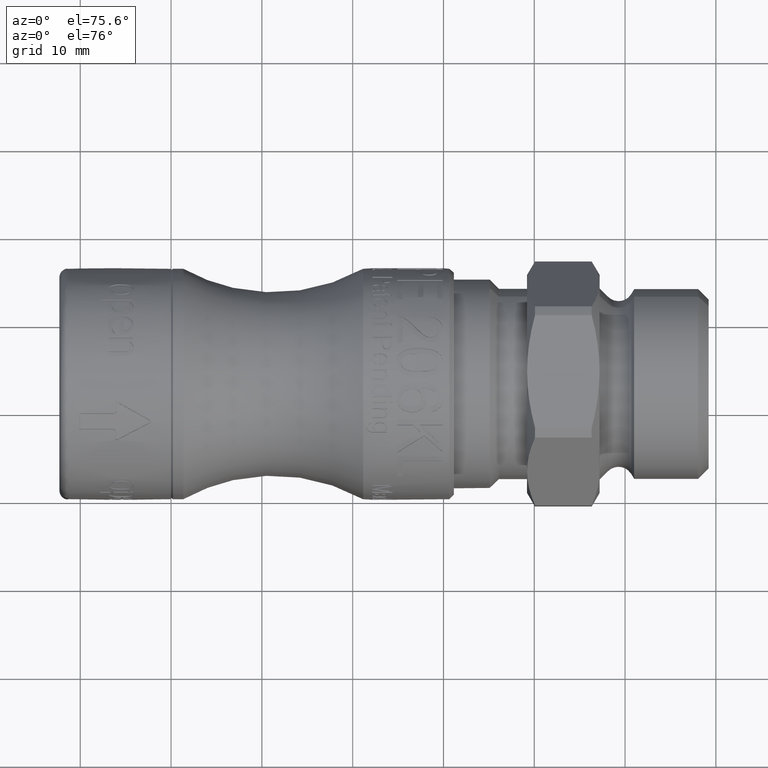
[diagram: clean part render]
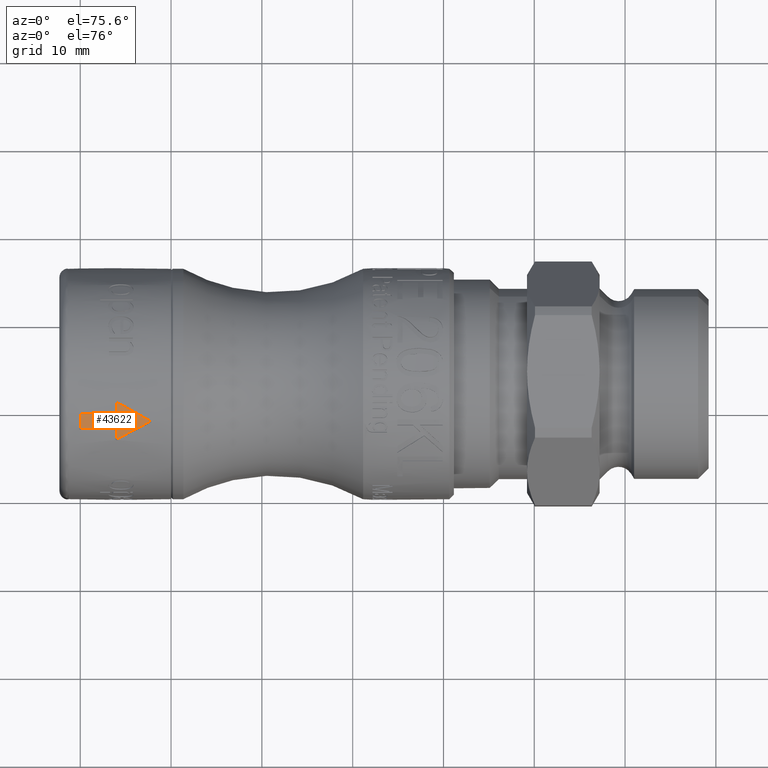
[diagram: same view with one face highlighted and labeled with its STEP entity id]
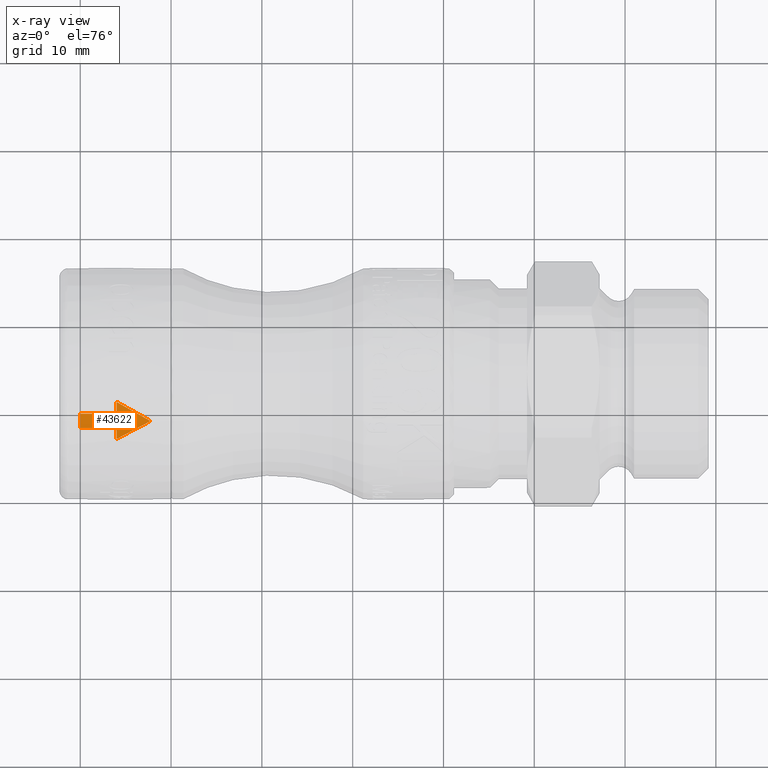
[diagram: x-ray of the same camera — body ghosted, the highlighted face saturated]
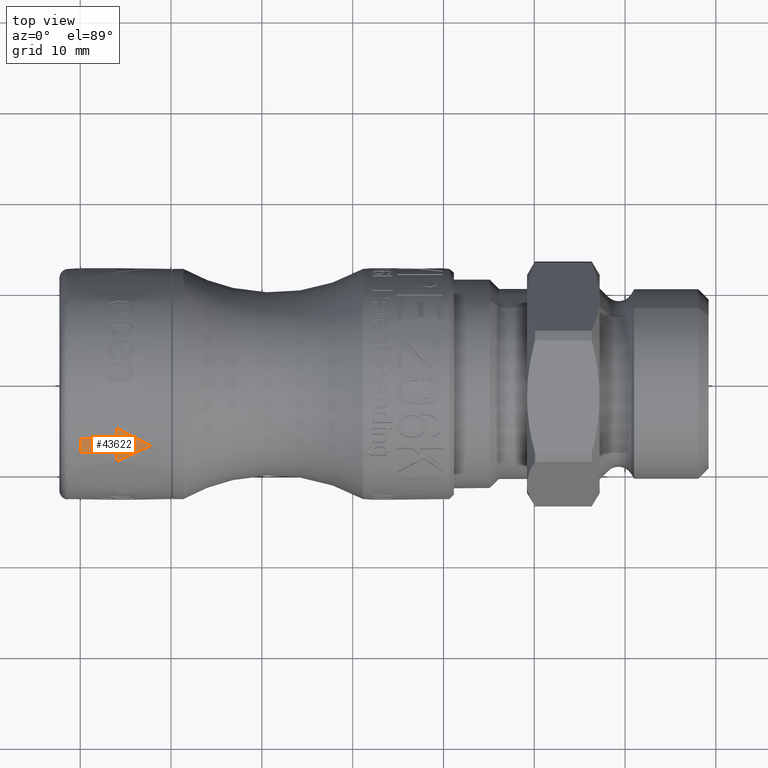
[diagram: same view with one face highlighted and labeled with its STEP entity id]
A machine part, auxiliary view. The second image highlights one B-rep face of the part: STEP entity #43622.
The next image is the same camera in x-ray: the body ghosted, the highlighted face saturated — about 0% of this face is hidden behind the body in this view.
A second angle (top view) of the same face is appended — the face is thin or edge-on in the first view.
In plain terms, the highlighted cylindrical surface (partial cylindrical patch) has radius 12.75 mm, axis along (1, 0, 0).
Its self-contained STEP definition (entity closure, byte-faithful):
#14612=CARTESIAN_POINT('',(3.999655291612896,-7.932189554639195,9.982127472100968));
#14613=VERTEX_POINT('',#14612);
#14620=CARTESIAN_POINT('',(3.650000000011668,-7.655491952643687,10.195878724416445));
#14621=VERTEX_POINT('',#14620);
#14622=CARTESIAN_POINT('',(3.650000000011668,-7.655491952643687,10.195878724416445));
#14623=CARTESIAN_POINT('',(3.657628295117902,-7.655491952643889,10.195878724416293));
#14624=CARTESIAN_POINT('',(3.672884889651633,-7.655891327568524,10.195578871784932));
#14625=CARTESIAN_POINT('',(3.691873951672521,-7.657386866867019,10.194455755884274));
#14626=CARTESIAN_POINT('',(3.714514196560137,-7.660071834969344,10.192438563155701));
#14627=CARTESIAN_POINT('',(3.7369102840588,-7.663938197196707,10.18953235582191));
#14628=CARTESIAN_POINT('',(3.769777336115218,-7.671903935456609,10.183537144048412));
#14629=CARTESIAN_POINT('',(3.798028101372618,-7.681248161886426,10.176492926869811));
#14630=CARTESIAN_POINT('',(3.831684099855312,-7.695599310839688,10.165645556606158));
#14631=CARTESIAN_POINT('',(3.857109128747647,-7.709138802189982,10.155384436257073));
#14632=CARTESIAN_POINT('',(3.886608853042644,-7.728408478956289,10.140728588429116));
#14633=CARTESIAN_POINT('',(3.908231064468925,-7.745596053958116,10.127609592421305));
#14634=CARTESIAN_POINT('',(3.932440859006556,-7.769008056989803,10.109662106041601));
#14635=CARTESIAN_POINT('',(3.949429329050325,-7.789153820070974,10.094151407838872));
#14636=CARTESIAN_POINT('',(3.967418794999654,-7.81577243555815,10.073555867132695));
#14637=CARTESIAN_POINT('',(3.979120738752467,-7.83807472104299,10.056214703193213));
#14638=CARTESIAN_POINT('',(3.989090470696374,-7.863968951095376,10.035972844604357));
#14639=CARTESIAN_POINT('',(3.993927287396956,-7.881583774804104,10.022141590391392));
#14640=CARTESIAN_POINT('',(3.997285578689826,-7.899365648070679,10.008127819358158));
#14641=CARTESIAN_POINT('',(3.999155880018623,-7.9142641728776,9.996354174170905));
#14642=CARTESIAN_POINT('',(3.999655291611817,-7.926217271176825,9.986873282513626));
#14643=CARTESIAN_POINT('',(3.999655291612896,-7.932189554639195,9.982127472100968));
#14644=B_SPLINE_CURVE_WITH_KNOTS('',3,(#14622,#14623,#14624,#14625,#14626,#14627,#14628,#14629,#14630,#14631,#14632,#14633,#14634,#14635,#14636,#14637,#14638,#14639,#14640,#14641,#14642,#14643),.UNSPECIFIED.,.F.,.U.,(4,1,1,1,1,1,1,1,1,1,1,1,1,1,1,1,1,1,1,4),(1.570796326969637,1.636246173912144,1.70169602085465,1.734420944325904,1.832595714739663,1.89804556168217,2.028945255567182,2.094395102509689,2.225294796394702,2.290744643337209,2.421644337222221,2.487094184164728,2.617993878049741,2.683443724992247,2.81434341887726,2.879793265819766,2.977968036233527,3.01069295970478,3.076142806647287,3.141592653589793),.UNSPECIFIED.);
#14645=EDGE_CURVE('',#14621,#14613,#14644,.T.);
#14670=CARTESIAN_POINT('',(3.999655291612903,-8.600583307388494,9.412357131594098));
#14671=VERTEX_POINT('',#14670);
#14678=CARTESIAN_POINT('',(3.999655291612894,1.211596E-049,1.072766E-050));
#14679=DIRECTION('',(1.0,1.057138E-052,-8.059453E-052));
#14680=DIRECTION('',(-8.128488E-052,0.130053398027148,-0.991506991231828));
#14681=AXIS2_PLACEMENT_3D('',#14678,#14679,#14680);
#14682=CIRCLE('',#14681,12.75);
#14683=EDGE_CURVE('',#14613,#14671,#14682,.T.);
#14865=CARTESIAN_POINT('',(4.075172354164559,-8.632719378807998,9.38289167190759));
#14866=VERTEX_POINT('',#14865);
#14873=CARTESIAN_POINT('',(3.999655291612903,-8.600583307388494,9.412357131594098));
#14874=CARTESIAN_POINT('',(3.99965529161216,-8.601664413093557,9.411369266434447));
#14875=CARTESIAN_POINT('',(3.999783157585651,-8.603826284593986,9.409393161684035));
#14876=CARTESIAN_POINT('',(4.000261503980494,-8.60650720813687,9.406940911731752));
#14877=CARTESIAN_POINT('',(4.000975929314105,-8.609156805057994,9.404516080174108));
#14878=CARTESIAN_POINT('',(4.001734715880319,-8.611245368713124,9.402603714365414));
#14879=CARTESIAN_POINT('',(4.002911841634002,-8.613802336579951,9.400261307161697));
#14880=CARTESIAN_POINT('',(4.004033763324316,-8.615799088656377,9.398431206159613));
#14881=CARTESIAN_POINT('',(4.005653444887802,-8.618219828288522,9.396211468936862));
#14882=CARTESIAN_POINT('',(4.00711930611065,-8.620090744892167,9.394495101107193));
#14883=CARTESIAN_POINT('',(4.009153829947625,-8.622334034246377,9.392436230593177));
#14884=CARTESIAN_POINT('',(4.010938549484376,-8.624047276541697,9.390863152865205));
#14885=CARTESIAN_POINT('',(4.013353104297162,-8.626074962589506,9.389000628635326));
#14886=CARTESIAN_POINT('',(4.015426145108463,-8.627601409775734,9.387597967853608));
#14887=CARTESIAN_POINT('',(4.018179417191928,-8.629379045607994,9.385963928126651));
#14888=CARTESIAN_POINT('',(4.020505308975377,-8.630692779995812,9.384755902536114));
#14889=CARTESIAN_POINT('',(4.02355018908061,-8.632190197328333,9.383378575917421));
#14890=CARTESIAN_POINT('',(4.026089135183003,-8.633268934118195,9.382386065934774));
#14891=CARTESIAN_POINT('',(4.029373524567198,-8.634460742558916,9.381289270080643));
#14892=CARTESIAN_POINT('',(4.032082082916818,-8.63528619790478,9.380529446702235));
#14893=CARTESIAN_POINT('',(4.035549784767019,-8.636152203600766,9.379732163727281));
#14894=CARTESIAN_POINT('',(4.038381611179601,-8.636710395570386,9.379218181901285));
#14895=CARTESIAN_POINT('',(4.041973292155613,-8.637235933156243,9.378734218948184));
#14896=CARTESIAN_POINT('',(4.044879933296444,-8.637517411255756,9.378474982024677));
#14897=CARTESIAN_POINT('',(4.048534138739544,-8.637693584356512,9.378312723794767));
#14898=CARTESIAN_POINT('',(4.05146586117629,-8.63769358436346,9.378312723788326));
#14899=CARTESIAN_POINT('',(4.055120066602513,-8.637517411241664,9.378474982037847));
#14900=CARTESIAN_POINT('',(4.05802670778894,-8.637235933202069,9.378734218905654));
#14901=CARTESIAN_POINT('',(4.061618388558709,-8.63671039536484,9.379218182092588));
#14902=CARTESIAN_POINT('',(4.064450215466986,-8.636152204007654,9.379732163348994));
#14903=CARTESIAN_POINT('',(4.067917915054585,-8.635286195527316,9.3805294489137));
#14904=CARTESIAN_POINT('',(4.071303619735905,-8.63425438465131,9.381479220411064));
#14905=CARTESIAN_POINT('',(4.073904087483697,-8.633258239438193,9.382395893765054));
#14906=CARTESIAN_POINT('',(4.075172354151698,-8.632719378791609,9.382891671922671));
#14907=B_SPLINE_CURVE_WITH_KNOTS('',3,(#14873,#14874,#14875,#14876,#14877,#14878,#14879,#14880,#14881,#14882,#14883,#14884,#14885,#14886,#14887,#14888,#14889,#14890,#14891,#14892,#14893,#14894,#14895,#14896,#14897,#14898,#14899,#14900,#14901,#14902,#14903,#14904,#14905,#14906),.UNSPECIFIED.,.F.,.U.,(4,1,1,1,1,1,1,1,1,1,1,1,1,1,1,1,1,1,1,1,1,1,1,1,1,1,1,1,1,1,1,4),(1.120457E-023,0.087266462580853,0.174532925161705,0.218166156452132,0.305432619032984,0.349065850323411,0.436332312904263,0.47996554419469,0.567232006775542,0.610865238065969,0.698131700646821,0.741764931937248,0.8290313945181,0.872664625808527,0.959931088389379,1.003564319679805,1.090830782260658,1.134464013551084,1.221730476131937,1.265363707422363,1.352630170003216,1.396263401293642,1.483529863874495,1.527163095164921,1.614429557745774,1.6580627890362,1.745329251617053,1.788962482907479,1.876228945488332,1.919862176778758,2.007128639359611,2.094395101940464),.UNSPECIFIED.);
#14908=EDGE_CURVE('',#14671,#14866,#14907,.T.);
#15000=CARTESIAN_POINT('',(7.675172354005589,-6.995467483935391,10.659546645200377));
#15001=VERTEX_POINT('',#15000);
#15008=CARTESIAN_POINT('',(4.075172354164562,-8.632719378807996,9.38289167190759));
#15009=CARTESIAN_POINT('',(4.175172354160682,-8.590231417770317,9.421982674707314));
#15010=CARTESIAN_POINT('',(4.375172354152915,-8.504724448928942,9.499587486311775));
#15011=CARTESIAN_POINT('',(4.625172354143211,-8.396532838874695,9.59513260664815));
#15012=CARTESIAN_POINT('',(4.8751723541335,-8.287375286538612,9.689568841300716));
#15013=CARTESIAN_POINT('',(5.075172354125733,-8.199282532586398,9.764225489888787));
#15014=CARTESIAN_POINT('',(5.325172354116047,-8.088223441102224,9.856417961660329));
#15015=CARTESIAN_POINT('',(5.525172354108284,-7.998627797402972,9.929264163388062));
#15016=CARTESIAN_POINT('',(5.775172354098578,-7.885713280051402,10.019174593399223));
#15017=CARTESIAN_POINT('',(5.975172354090816,-7.794651947565781,10.090180101648343));
#15018=CARTESIAN_POINT('',(6.225172354081118,-7.6799288877479,10.177771158268584));
#15019=CARTESIAN_POINT('',(6.425172354073362,-7.587439675929957,10.246906490576972));
#15020=CARTESIAN_POINT('',(6.725172354061725,-7.447658915164079,10.349188869179393));
#15021=CARTESIAN_POINT('',(7.125172354046196,-7.259440523205278,10.483027229622667));
#15022=CARTESIAN_POINT('',(7.475172354032621,-7.092005399645679,10.596192370126577));
#15023=CARTESIAN_POINT('',(7.675172354024859,-6.995467483963285,10.659546645182074));
#15024=B_SPLINE_CURVE_WITH_KNOTS('',3,(#15008,#15009,#15010,#15011,#15012,#15013,#15014,#15015,#15016,#15017,#15018,#15019,#15020,#15021,#15022,#15023),.UNSPECIFIED.,.F.,.U.,(4,1,1,1,1,1,1,1,1,1,1,1,1,4),(0.0,0.034641016149972,0.069282032299943,0.086602540374929,0.121243556524901,0.138564064599887,0.173205080749858,0.190525588824844,0.225166604974816,0.242487113049802,0.277128129199773,0.294448637274759,0.346410161499716,0.41569219379966),.UNSPECIFIED.);
#15025=EDGE_CURVE('',#14866,#15001,#15024,.T.);
#15207=CARTESIAN_POINT('',(7.675172354315905,-6.922401850087592,10.707140263670034));
#15208=VERTEX_POINT('',#15207);
#15215=CARTESIAN_POINT('',(7.675172354005591,-6.995467483935391,10.659546645200377));
#15216=CARTESIAN_POINT('',(7.676440620677671,-6.994855304836197,10.659948395774325));
#15217=CARTESIAN_POINT('',(7.678913222459035,-6.993538297578552,10.66081254863988));
#15218=CARTESIAN_POINT('',(7.681820580755305,-6.991672820164593,10.662036050829538));
#15219=CARTESIAN_POINT('',(7.68457385501968,-6.989653557811764,10.66335992235523));
#15220=CARTESIAN_POINT('',(7.686646895370481,-6.987919701732737,10.664496251905941));
#15221=CARTESIAN_POINT('',(7.689061450397933,-6.985616619348587,10.666004998655305));
#15222=CARTESIAN_POINT('',(7.690846169903454,-6.983670787386526,10.667279169370774));
#15223=CARTESIAN_POINT('',(7.692880693778237,-6.981123093733759,10.668946668019302));
#15224=CARTESIAN_POINT('',(7.694346555001967,-6.978998422596568,10.67033663925741));
#15225=CARTESIAN_POINT('',(7.695966236620545,-6.976249523297192,10.672134072514064));
#15226=CARTESIAN_POINT('',(7.697088158234648,-6.973982226611049,10.673615846538706));
#15227=CARTESIAN_POINT('',(7.698265284410432,-6.971078996373247,10.675512214224025));
#15228=CARTESIAN_POINT('',(7.699024070021723,-6.96870775412119,10.677060261782314));
#15229=CARTESIAN_POINT('',(7.699738499800862,-6.965699745774528,10.679022927861109));
#15230=CARTESIAN_POINT('',(7.700121166376817,-6.963265050181269,10.680610637012105));
#15231=CARTESIAN_POINT('',(7.700360675667764,-6.960203655125588,10.682605900874274));
#15232=CARTESIAN_POINT('',(7.700360675677135,-6.957747123259876,10.684206040833645));
#15233=CARTESIAN_POINT('',(7.700121166409537,-6.954684697299893,10.686199722056241));
#15234=CARTESIAN_POINT('',(7.699738499852166,-6.952248361754964,10.687784913561));
#15235=CARTESIAN_POINT('',(7.69902407009603,-6.949237330949988,10.689742939575819));
#15236=CARTESIAN_POINT('',(7.698265284502835,-6.946862920554885,10.691286123415754));
#15237=CARTESIAN_POINT('',(7.697088158349217,-6.943954882280883,10.693175109826665));
#15238=CARTESIAN_POINT('',(7.695966236752422,-6.941683105164548,10.694650005516435));
#15239=CARTESIAN_POINT('',(7.694346555154858,-6.938927939911451,10.696437819311672));
#15240=CARTESIAN_POINT('',(7.692880693947357,-6.936797781391315,10.697819366346938));
#15241=CARTESIAN_POINT('',(7.690846170092044,-6.93424279088253,10.699475662899612));
#15242=CARTESIAN_POINT('',(7.689061450601397,-6.932290838540496,10.700740437640119));
#15243=CARTESIAN_POINT('',(7.686646895591553,-6.929979925669947,10.702237163069784));
#15244=CARTESIAN_POINT('',(7.684573855254,-6.928239733300361,10.703363765183374));
#15245=CARTESIAN_POINT('',(7.681820581005074,-6.926212640498343,10.70467561545038));
#15246=CARTESIAN_POINT('',(7.67891322272308,-6.924339512492929,10.705887372500458));
#15247=CARTESIAN_POINT('',(7.67644062095177,-6.923016762546919,10.706742709230536));
#15248=CARTESIAN_POINT('',(7.675172354284372,-6.922401850133445,10.707140263640385));
#15249=B_SPLINE_CURVE_WITH_KNOTS('',3,(#15215,#15216,#15217,#15218,#15219,#15220,#15221,#15222,#15223,#15224,#15225,#15226,#15227,#15228,#15229,#15230,#15231,#15232,#15233,#15234,#15235,#15236,#15237,#15238,#15239,#15240,#15241,#15242,#15243,#15244,#15245,#15246,#15247,#15248),.UNSPECIFIED.,.F.,.U.,(4,1,1,1,1,1,1,1,1,1,1,1,1,1,1,1,1,1,1,1,1,1,1,1,1,1,1,1,1,1,1,4),(0.0,0.087266462692628,0.174532925385256,0.21816615673157,0.305432619424198,0.349065850770512,0.436332313463139,0.479965544809453,0.567232007502081,0.610865238848395,0.698131701541023,0.741764932887337,0.829031395579965,0.872664626926279,0.959931089618907,1.003564320965221,1.090830783657848,1.134464015004162,1.22173047769679,1.265363709043104,1.352630171735732,1.396263403082046,1.483529865774673,1.527163097120988,1.614429559813615,1.658062791159929,1.745329253852557,1.788962485198871,1.876228947891499,1.919862179237813,2.007128641930441,2.094395104623069),.UNSPECIFIED.);
#15250=EDGE_CURVE('',#15001,#15208,#15249,.T.);
#15342=CARTESIAN_POINT('',(4.07517235414919,-5.092905420227023,11.688661787416997));
#15343=VERTEX_POINT('',#15342);
#15350=CARTESIAN_POINT('',(7.675172354315905,-6.92240185008759,10.707140263670034));
#15351=CARTESIAN_POINT('',(7.5751723543117,-6.873917377039516,10.738486542663628));
#15352=CARTESIAN_POINT('',(7.375172354303279,-6.776522595347637,10.800520444730683));
#15353=CARTESIAN_POINT('',(7.125172354292771,-6.65373699076971,10.87640186417952));
#15354=CARTESIAN_POINT('',(6.87517235428227,-6.530186790836741,10.951027072700498));
#15355=CARTESIAN_POINT('',(6.675172354273855,-6.430741793581981,11.009718136757595));
#15356=CARTESIAN_POINT('',(6.425172354263358,-6.305696705268148,11.081810435542899));
#15357=CARTESIAN_POINT('',(6.225172354254951,-6.205076484327405,11.138463057862973));
#15358=CARTESIAN_POINT('',(5.975172354244428,-6.078588427972611,11.20799251389446));
#15359=CARTESIAN_POINT('',(5.775172354236021,-5.976834761846751,11.262583171589572));
#15360=CARTESIAN_POINT('',(5.525172354225512,-5.848956256705458,11.329520915647569));
#15361=CARTESIAN_POINT('',(5.325172354217104,-5.74611139445894,11.382026941848917));
#15362=CARTESIAN_POINT('',(5.025172354204494,-5.591052366239792,11.459208829781204));
#15363=CARTESIAN_POINT('',(4.625172354187673,-5.382918536669454,11.559304677814751));
#15364=CARTESIAN_POINT('',(4.275172354172968,-5.198763491255168,11.642538017774577));
#15365=CARTESIAN_POINT('',(4.075172354164559,-5.092905420202612,11.688661787427632));
#15366=B_SPLINE_CURVE_WITH_KNOTS('',3,(#15350,#15351,#15352,#15353,#15354,#15355,#15356,#15357,#15358,#15359,#15360,#15361,#15362,#15363,#15364,#15365),.UNSPECIFIED.,.F.,.U.,(4,1,1,1,1,1,1,1,1,1,1,1,1,4),(0.0,0.034641016152678,0.069282032305357,0.086602540381696,0.121243556534374,0.138564064610713,0.173205080763392,0.190525588839731,0.225166604992409,0.242487113068749,0.277128129221427,0.294448637297766,0.346410161526784,0.41569219383214),.UNSPECIFIED.);
#15367=EDGE_CURVE('',#15208,#15343,#15366,.T.);
#15549=CARTESIAN_POINT('',(3.999655291612896,-5.132846018057309,11.671177822092902));
#15550=VERTEX_POINT('',#15549);
#15557=CARTESIAN_POINT('',(4.075172354149189,-5.092905420227022,11.688661787416997));
#15558=CARTESIAN_POINT('',(4.07390408748125,-5.092234138913377,11.688954273614558));
#15559=CARTESIAN_POINT('',(4.071303619733595,-5.090993042601247,11.689494898500136));
#15560=CARTESIAN_POINT('',(4.067917915052497,-5.089707256320637,11.690054767431977));
#15561=CARTESIAN_POINT('',(4.064450215465125,-5.088627961809522,11.690524616681676));
#15562=CARTESIAN_POINT('',(4.061618388557049,-5.087932217178582,11.690827426409797));
#15563=CARTESIAN_POINT('',(4.058026707787558,-5.08727712775425,11.691112502242746));
#15564=CARTESIAN_POINT('',(4.05512006660136,-5.08692623791856,11.691265178251166));
#15565=CARTESIAN_POINT('',(4.051465861175435,-5.086706615848082,11.691360733755943));
#15566=CARTESIAN_POINT('',(4.048534138738937,-5.086706615856825,11.691360733752186));
#15567=CARTESIAN_POINT('',(4.04487993329613,-5.086926237900973,11.691265178258664));
#15568=CARTESIAN_POINT('',(4.041973292155541,-5.087277127811896,11.691112502217942));
#15569=CARTESIAN_POINT('',(4.038381611179823,-5.08793221692083,11.69082742652032));
#15570=CARTESIAN_POINT('',(4.035549784767471,-5.088627962320391,11.690524616462232));
#15571=CARTESIAN_POINT('',(4.032082082917551,-5.089707253337348,11.690054768712464));
#15572=CARTESIAN_POINT('',(4.029373524568133,-5.090735890701003,11.689606869987104));
#15573=CARTESIAN_POINT('',(4.026089135184173,-5.092220826894228,11.68896008330946));
#15574=CARTESIAN_POINT('',(4.023550189081948,-5.093564672277137,11.688374567542208));
#15575=CARTESIAN_POINT('',(4.020505308976896,-5.09542972890408,11.687561640079542));
#15576=CARTESIAN_POINT('',(4.01817941719357,-5.097065686165617,11.686848290441088));
#15577=CARTESIAN_POINT('',(4.015426145110207,-5.099278815113463,11.685882818929334));
#15578=CARTESIAN_POINT('',(4.013353104298972,-5.101178778028839,11.685053578795255));
#15579=CARTESIAN_POINT('',(4.010938549486252,-5.103701965394282,11.683951747259931));
#15580=CARTESIAN_POINT('',(4.0091538299495,-5.10583330631038,11.68302053375128));
#15581=CARTESIAN_POINT('',(4.007119306112493,-5.108623232760269,11.681800859482456));
#15582=CARTESIAN_POINT('',(4.00565344488959,-5.110949368914978,11.680783343854719));
#15583=CARTESIAN_POINT('',(4.004033763325969,-5.113958160861154,11.679466383442739));
#15584=CARTESIAN_POINT('',(4.002911841635527,-5.116439188134945,11.678379740816325));
#15585=CARTESIAN_POINT('',(4.001734715881634,-5.119615246193291,11.676987759714699));
#15586=CARTESIAN_POINT('',(4.000975929315219,-5.122208628930625,11.675850391215119));
#15587=CARTESIAN_POINT('',(4.000261503981316,-5.125497518809707,11.674407001008682));
#15588=CARTESIAN_POINT('',(3.999783157586138,-5.128824149716857,11.672946039792098));
#15589=CARTESIAN_POINT('',(3.999655291612316,-5.131505463640298,11.671767382076155));
#15590=CARTESIAN_POINT('',(3.999655291612893,-5.132846018057307,11.671177822092904));
#15591=B_SPLINE_CURVE_WITH_KNOTS('',3,(#15557,#15558,#15559,#15560,#15561,#15562,#15563,#15564,#15565,#15566,#15567,#15568,#15569,#15570,#15571,#15572,#15573,#15574,#15575,#15576,#15577,#15578,#15579,#15580,#15581,#15582,#15583,#15584,#15585,#15586,#15587,#15588,#15589,#15590),.UNSPECIFIED.,.F.,.U.,(4,1,1,1,1,1,1,1,1,1,1,1,1,1,1,1,1,1,1,1,1,1,1,1,1,1,1,1,1,1,1,4),(-6.683788E-017,0.08726646257366,0.174532925147321,0.218166156434151,0.305432619007811,0.349065850294642,0.436332312868302,0.479965544155132,0.567232006728793,0.610865238015623,0.698131700589283,0.741764931876113,0.829031394449774,0.872664625736604,0.959931088310264,1.003564319597095,1.090830782170755,1.134464013457585,1.221730476031246,1.265363707318076,1.352630169891737,1.396263401178566,1.483529863752227,1.527163095039057,1.614429557612717,1.658062788899548,1.745329251473208,1.788962482760038,1.876228945333699,1.919862176620529,2.007128639194189,2.09439510176785),.UNSPECIFIED.);
#15592=EDGE_CURVE('',#15343,#15550,#15591,.T.);
#15612=CARTESIAN_POINT('',(3.999655291612894,-5.92416312646899,11.290119186748434));
#15613=VERTEX_POINT('',#15612);
#15620=CARTESIAN_POINT('',(3.999655291612894,1.211596E-049,1.072766E-050));
#15621=DIRECTION('',(1.0,1.057138E-052,-8.059453E-052));
#15622=DIRECTION('',(-8.128488E-052,0.130053398027148,-0.991506991231828));
#15623=AXIS2_PLACEMENT_3D('',#15620,#15621,#15622);
#15624=CIRCLE('',#15623,12.75);
#15625=EDGE_CURVE('',#15550,#15613,#15624,.T.);
#15747=CARTESIAN_POINT('',(3.65000000001166,-6.231516358630229,11.123430400381178));
#15748=VERTEX_POINT('',#15747);
#15755=CARTESIAN_POINT('',(3.999655291612894,-5.92416312646899,11.290119186748434));
#15756=CARTESIAN_POINT('',(3.999655291611941,-5.930917978307575,11.286574773839677));
#15757=CARTESIAN_POINT('',(3.999155880018991,-5.944421316716468,11.27947380789214));
#15758=CARTESIAN_POINT('',(3.997285578690468,-5.961212311565085,11.270605479164569));
#15759=CARTESIAN_POINT('',(3.993927287397897,-5.981217733894873,11.260005296484097));
#15760=CARTESIAN_POINT('',(3.989090470697589,-6.000988691985869,11.249484135732002));
#15761=CARTESIAN_POINT('',(3.979120738754021,-6.029969779720831,11.233981215269424));
#15762=CARTESIAN_POINT('',(3.967418795001433,-6.054845822387033,11.220591278528826));
#15763=CARTESIAN_POINT('',(3.949429329052301,-6.08444320957457,11.204568742551579));
#15764=CARTESIAN_POINT('',(3.932440859008612,-6.106773312127921,11.192411438210637));
#15765=CARTESIAN_POINT('',(3.908231064471007,-6.132652488273143,11.178251551368518));
#15766=CARTESIAN_POINT('',(3.886608853044674,-6.151599270733605,11.167833287352408));
#15767=CARTESIAN_POINT('',(3.857109128749536,-6.172793352479738,11.156131782440802));
#15768=CARTESIAN_POINT('',(3.831684099857035,-6.187651563698405,11.147895158360777));
#15769=CARTESIAN_POINT('',(3.798028101374085,-6.203374072707627,11.139153097483376));
#15770=CARTESIAN_POINT('',(3.76977733611643,-6.21359414994843,11.133453484827369));
#15771=CARTESIAN_POINT('',(3.7369102840597,-6.222297547490693,11.128590726200855));
#15772=CARTESIAN_POINT('',(3.714514196560803,-6.22651855457103,11.126228968980303));
#15773=CARTESIAN_POINT('',(3.691873951672963,-6.22944888629922,11.124588458030031));
#15774=CARTESIAN_POINT('',(3.672884889651875,-6.231080664789443,11.123674496281023));
#15775=CARTESIAN_POINT('',(3.65762829511798,-6.23151635863,11.123430400381293));
#15776=CARTESIAN_POINT('',(3.650000000011666,-6.231516358630223,11.123430400381169));
#15777=B_SPLINE_CURVE_WITH_KNOTS('',3,(#15755,#15756,#15757,#15758,#15759,#15760,#15761,#15762,#15763,#15764,#15765,#15766,#15767,#15768,#15769,#15770,#15771,#15772,#15773,#15774,#15775,#15776),.UNSPECIFIED.,.F.,.U.,(4,1,1,1,1,1,1,1,1,1,1,1,1,1,1,1,1,1,1,4),(1.570796326953072,1.636246173896269,1.701696020839465,1.734420944311064,1.832595714725859,1.898045561669056,2.028945255555449,2.094395102498646,2.225294796385039,2.290744643328236,2.42164433721463,2.487094184157826,2.617993878044219,2.683443724987416,2.81434341887381,2.879793265817007,2.977968036231802,3.0106929597034,3.076142806646596,3.141592653589793),.UNSPECIFIED.);
#15778=EDGE_CURVE('',#15613,#15748,#15777,.T.);
#15797=CARTESIAN_POINT('',(0.050000000005846,-6.23151635863022,11.123430400381174));
#15798=VERTEX_POINT('',#15797);
#15805=CARTESIAN_POINT('',(3.65000000001166,-6.23151635863022,11.123430400381174));
#15806=DIRECTION('',(-1.0,0.0,0.0));
#15807=VECTOR('',#15806,3.600000000005814);
#15808=LINE('',#15805,#15807);
#15809=EDGE_CURVE('',#15748,#15798,#15808,.T.);
#15931=CARTESIAN_POINT('',(-0.000344708387107,-6.275389693482709,11.098737955052847));
#15932=VERTEX_POINT('',#15931);
#15939=CARTESIAN_POINT('',(0.050000000005846,-6.23151635863022,11.123430400381174));
#15940=CARTESIAN_POINT('',(0.048901648853158,-6.23151635863011,11.123430400381235));
#15941=CARTESIAN_POINT('',(0.046704945925577,-6.23157909244894,11.123395256213914));
#15942=CARTESIAN_POINT('',(0.043970828030429,-6.231814029130423,11.12326363723308));
#15943=CARTESIAN_POINT('',(0.040710998838754,-6.232235871871085,11.123027291532603));
#15944=CARTESIAN_POINT('',(0.037486324363243,-6.232843423914432,11.122686871110833));
#15945=CARTESIAN_POINT('',(0.032754000297282,-6.234095658942035,11.121985079952575));
#15946=CARTESIAN_POINT('',(0.028686346889157,-6.235565372850266,11.121161188153961));
#15947=CARTESIAN_POINT('',(0.023840427294127,-6.237824540625182,11.119894200890592));
#15948=CARTESIAN_POINT('',(0.020179634232809,-6.23995778009938,11.118697320175743));
#15949=CARTESIAN_POINT('',(0.015932150917408,-6.2429973795045,11.116990929434449));
#15950=CARTESIAN_POINT('',(0.012818902082922,-6.245711724016223,11.115466248321781));
#15951=CARTESIAN_POINT('',(0.009333083119008,-6.249414346608317,11.113384974524301));
#15952=CARTESIAN_POINT('',(0.006887018120043,-6.252604997715406,11.111590217727969));
#15953=CARTESIAN_POINT('',(0.00429682589558,-6.256827758340028,11.109212986199577));
#15954=CARTESIAN_POINT('',(0.002611935204032,-6.26037164746977,11.10721632523463));
#15955=CARTESIAN_POINT('',(0.001176455004487,-6.264493755923526,11.104891865441219));
#15956=CARTESIAN_POINT('',(0.000480031605743,-6.267302126972904,11.103307069588581));
#15957=CARTESIAN_POINT('',(-0.000003508040732,-6.270140702667526,11.101704267533075));
#15958=CARTESIAN_POINT('',(-0.000272801191703,-6.272521244454389,11.100359491868632));
#15959=CARTESIAN_POINT('',(-0.000344708386663,-6.274433590610062,11.09927854968058));
#15960=CARTESIAN_POINT('',(-0.000344708387107,-6.275389693482714,11.09873795505286));
#15961=B_SPLINE_CURVE_WITH_KNOTS('',3,(#15939,#15940,#15941,#15942,#15943,#15944,#15945,#15946,#15947,#15948,#15949,#15950,#15951,#15952,#15953,#15954,#15955,#15956,#15957,#15958,#15959,#15960),.UNSPECIFIED.,.F.,.U.,(4,1,1,1,1,1,1,1,1,1,1,1,1,1,1,1,1,1,1,4),(1.556191E-026,0.065449846937752,0.130899693875504,0.163624617344379,0.261799387751007,0.327249234688759,0.458148928564263,0.523598775502014,0.654498469377518,0.71994831631527,0.850848010190773,0.916297857128525,1.047197551004029,1.112647397941781,1.243547091817284,1.308996938755036,1.407171709161663,1.439896632630539,1.505346479568291,1.570796326506043),.UNSPECIFIED.);
#15962=EDGE_CURVE('',#15798,#15932,#15961,.T.);
#15982=CARTESIAN_POINT('',(-0.000344708387107,-7.61517288371061,10.226027672131474));
#15983=VERTEX_POINT('',#15982);
#15990=CARTESIAN_POINT('',(-0.000344708387107,4.422865E-050,3.916074E-051));
#15991=DIRECTION('',(1.0,1.057138E-052,-8.059453E-052));
#15992=DIRECTION('',(-8.128488E-052,0.130053398027148,-0.991506991231828));
#15993=AXIS2_PLACEMENT_3D('',#15990,#15991,#15992);
#15994=CIRCLE('',#15993,12.75);
#15995=EDGE_CURVE('',#15932,#15983,#15994,.T.);
#16117=CARTESIAN_POINT('',(0.050000000005843,-7.655491952643683,10.195878724416442));
#16118=VERTEX_POINT('',#16117);
#16125=CARTESIAN_POINT('',(-0.000344708387107,-7.61517288371061,10.226027672131474));
#16126=CARTESIAN_POINT('',(-0.000344708386789,-7.616053806791546,10.22537166162831));
#16127=CARTESIAN_POINT('',(-0.000272801192071,-7.617815483722107,10.22405941232803));
#16128=CARTESIAN_POINT('',(-0.000003508041375,-7.620007726191806,10.222425559904451));
#16129=CARTESIAN_POINT('',(0.000480031604793,-7.622621115258697,10.220477051759701));
#16130=CARTESIAN_POINT('',(0.001176455003268,-7.625205825854705,10.218548892797795));
#16131=CARTESIAN_POINT('',(0.002611935202478,-7.628998098365311,10.21571806948195));
#16132=CARTESIAN_POINT('',(0.004296825893798,-7.632256826500444,10.213283629891858));
#16133=CARTESIAN_POINT('',(0.006887018118068,-7.63613805140389,10.210382073363601));
#16134=CARTESIAN_POINT('',(0.009333083116949,-7.639069324817366,10.208189120417494));
#16135=CARTESIAN_POINT('',(0.012818902080844,-7.642469605936778,10.20564369255694));
#16136=CARTESIAN_POINT('',(0.01593215091538,-7.644961325793761,10.203777238490943));
#16137=CARTESIAN_POINT('',(0.020179634230918,-7.647750718231753,10.201686730481965));
#16138=CARTESIAN_POINT('',(0.023840427292401,-7.649707725871268,10.200219298984292));
#16139=CARTESIAN_POINT('',(0.028686346887689,-7.651779758166741,10.198665021683031));
#16140=CARTESIAN_POINT('',(0.032754000296065,-7.65312740657695,10.197653735160259));
#16141=CARTESIAN_POINT('',(0.037486324362344,-7.654275468092172,10.1967920170207));
#16142=CARTESIAN_POINT('',(0.040710998838078,-7.654832413362539,10.196373905175784));
#16143=CARTESIAN_POINT('',(0.043970828029992,-7.655219100789105,10.196083589102834));
#16144=CARTESIAN_POINT('',(0.046704945925338,-7.655434450278714,10.195921899901689));
#16145=CARTESIAN_POINT('',(0.048901648853077,-7.655491952643785,10.195878724416366));
#16146=CARTESIAN_POINT('',(0.050000000005846,-7.655491952643683,10.195878724416442));
#16147=B_SPLINE_CURVE_WITH_KNOTS('',3,(#16125,#16126,#16127,#16128,#16129,#16130,#16131,#16132,#16133,#16134,#16135,#16136,#16137,#16138,#16139,#16140,#16141,#16142,#16143,#16144,#16145,#16146),.UNSPECIFIED.,.F.,.U.,(4,1,1,1,1,1,1,1,1,1,1,1,1,1,1,1,1,1,1,4),(1.556191E-024,0.065449846942548,0.130899693885096,0.16362461735637,0.261799387770193,0.327249234712741,0.458148928597837,0.523598775540386,0.654498469425482,0.71994831636803,0.850848010253127,0.916297857195675,1.047197551080771,1.112647398023319,1.243547091908416,1.308996938850964,1.407171709264786,1.43989663273606,1.505346479678609,1.570796326621157),.UNSPECIFIED.);
#16148=EDGE_CURVE('',#15983,#16118,#16147,.T.);
#16166=CARTESIAN_POINT('',(0.050000000005843,-7.655491952643692,10.195878724416437));
#16167=DIRECTION('',(1.0,0.0,0.0));
#16168=VECTOR('',#16167,3.600000000005825);
#16169=LINE('',#16166,#16168);
#16170=EDGE_CURVE('',#16118,#14621,#16169,.T.);
#43601=CARTESIAN_POINT('',(3.85,1.182813E-049,1.047281E-050));
#43602=DIRECTION('',(1.0,1.923273E-050,1.702896E-051));
#43603=DIRECTION('',(-8.128488E-052,0.130053398027148,-0.991506991231828));
#43604=AXIS2_PLACEMENT_3D('',#43601,#43602,#43603);
#43605=CYLINDRICAL_SURFACE('',#43604,12.750000000000002);
#43606=ORIENTED_EDGE('',*,*,#14645,.T.);
#43607=ORIENTED_EDGE('',*,*,#14683,.T.);
#43608=ORIENTED_EDGE('',*,*,#14908,.T.);
#43609=ORIENTED_EDGE('',*,*,#15025,.T.);
#43610=ORIENTED_EDGE('',*,*,#15250,.T.);
#43611=ORIENTED_EDGE('',*,*,#15367,.T.);
#43612=ORIENTED_EDGE('',*,*,#15592,.T.);
#43613=ORIENTED_EDGE('',*,*,#15625,.T.);
#43614=ORIENTED_EDGE('',*,*,#15778,.T.);
#43615=ORIENTED_EDGE('',*,*,#15809,.T.);
#43616=ORIENTED_EDGE('',*,*,#15962,.T.);
#43617=ORIENTED_EDGE('',*,*,#15995,.T.);
#43618=ORIENTED_EDGE('',*,*,#16148,.T.);
#43619=ORIENTED_EDGE('',*,*,#16170,.T.);
#43620=EDGE_LOOP('',(#43606,#43607,#43608,#43609,#43610,#43611,#43612,#43613,#43614,#43615,#43616,#43617,#43618,#43619));
#43621=FACE_OUTER_BOUND('',#43620,.T.);
#43622=ADVANCED_FACE('',(#43621),#43605,.T.);